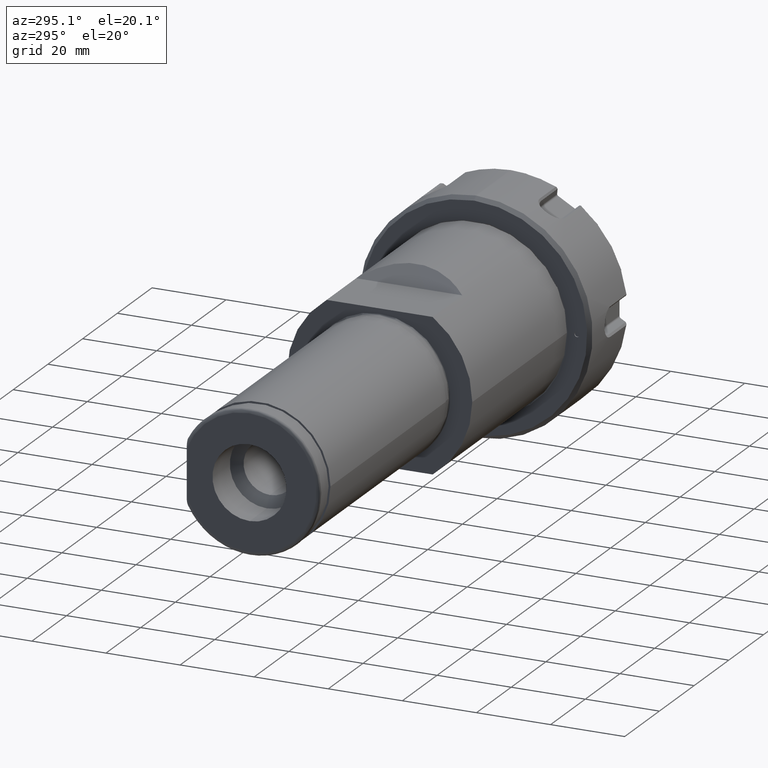
[diagram: clean part render]
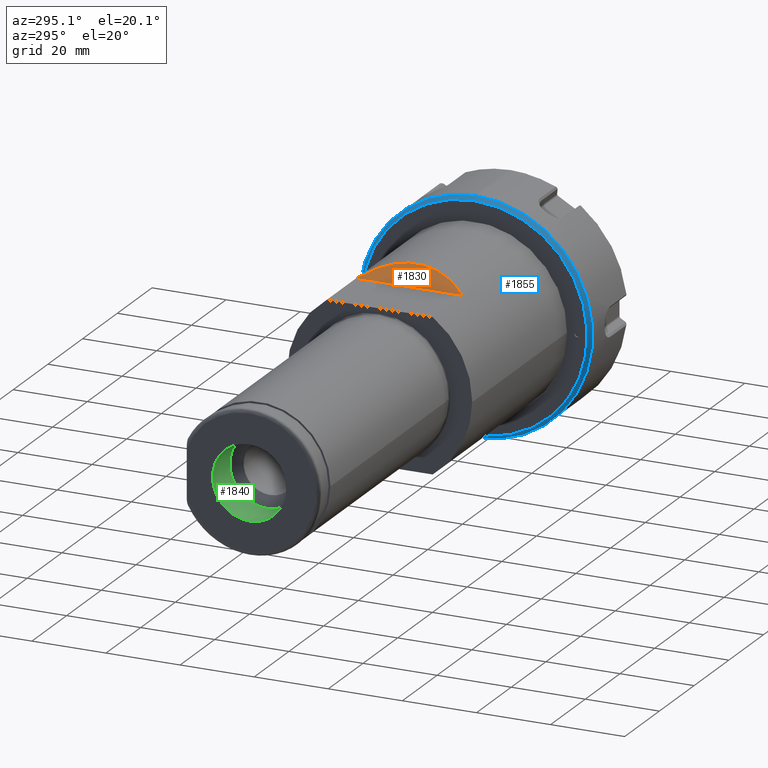
[diagram: same view with three faces highlighted in distinct colors, each labeled with its STEP entity id]
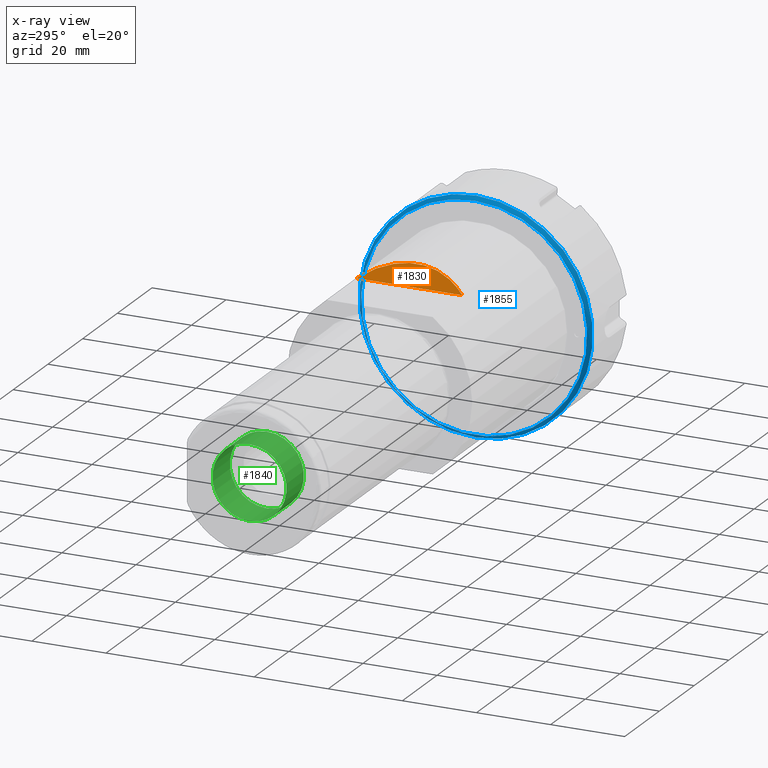
[diagram: x-ray of the same camera — body ghosted, the three highlighted faces saturated]
A machine part, auxiliary view with three faces highlighted in distinct colors.
The next image is the same camera in x-ray (body ghosted, the three faces saturated) — at least one of them is partly hidden behind the body in this view.
Their STEP definitions:

[orange] entity #1830 — the highlighted planar face has unit normal (0.7071, 0, -0.7071).
#340=FACE_OUTER_BOUND('',#452,.T.);
#452=EDGE_LOOP('',(#1251,#1252));
#574=LINE('',#2746,#688);
#688=VECTOR('',#2238,10.);
#798=ELLIPSE('',#2022,35.3553390593274,25.);
#808=VERTEX_POINT('',#2743);
#809=VERTEX_POINT('',#2744);
#979=EDGE_CURVE('',#808,#809,#798,.T.);
#980=EDGE_CURVE('',#809,#808,#574,.T.);
#1251=ORIENTED_EDGE('',*,*,#979,.F.);
#1252=ORIENTED_EDGE('',*,*,#980,.F.);
#1782=PLANE('',#2021);
#1830=ADVANCED_FACE('',(#340),#1782,.F.);
#2021=AXIS2_PLACEMENT_3D('',#2742,#2234,#2235);
#2022=AXIS2_PLACEMENT_3D('',#2745,#2236,#2237);
#2234=DIRECTION('center_axis',(0.707106781186548,0.,-0.707106781186548));
#2235=DIRECTION('ref_axis',(0.707106781186548,0.,0.707106781186548));
#2236=DIRECTION('center_axis',(0.707106781186548,0.,-0.707106781186548));
#2237=DIRECTION('ref_axis',(0.707106781186547,0.,0.707106781186547));
#2238=DIRECTION('',(0.,1.,0.));
#2742=CARTESIAN_POINT('Origin',(-48.,0.,20.5));
#2743=CARTESIAN_POINT('',(-48.,14.3090880212542,20.5));
#2744=CARTESIAN_POINT('',(-48.,-14.3090880212542,20.5));
#2745=CARTESIAN_POINT('Origin',(-68.5,0.,0.));
#2746=CARTESIAN_POINT('',(-48.,0.,20.5));

[blue] entity #1855 — the highlighted conical surface has half-angle 45 deg.
#136=CONICAL_SURFACE('',#2075,30.9999999999,0.785398163397448);
#279=CIRCLE('',#2072,30.5);
#282=CIRCLE('',#2076,31.5);
#365=FACE_OUTER_BOUND('',#482,.T.);
#482=EDGE_LOOP('',(#1368,#1369,#1370,#1371));
#600=LINE('',#2884,#714);
#714=VECTOR('',#2372,30.9999999999);
#840=VERTEX_POINT('',#2875);
#843=VERTEX_POINT('',#2882);
#1032=EDGE_CURVE('',#840,#840,#279,.T.);
#1035=EDGE_CURVE('',#843,#843,#282,.T.);
#1036=EDGE_CURVE('',#843,#840,#600,.T.);
#1368=ORIENTED_EDGE('',*,*,#1035,.T.);
#1369=ORIENTED_EDGE('',*,*,#1036,.T.);
#1370=ORIENTED_EDGE('',*,*,#1032,.F.);
#1371=ORIENTED_EDGE('',*,*,#1036,.F.);
#1855=ADVANCED_FACE('',(#365),#136,.T.);
#2072=AXIS2_PLACEMENT_3D('',#2876,#2362,#2363);
#2075=AXIS2_PLACEMENT_3D('',#2881,#2368,#2369);
#2076=AXIS2_PLACEMENT_3D('',#2883,#2370,#2371);
#2362=DIRECTION('center_axis',(-1.,0.,0.));
#2363=DIRECTION('ref_axis',(0.,0.,1.));
#2368=DIRECTION('center_axis',(1.,0.,0.));
#2369=DIRECTION('ref_axis',(0.,0.,-1.));
#2370=DIRECTION('center_axis',(-1.,0.,0.));
#2371=DIRECTION('ref_axis',(0.,0.,1.));
#2372=DIRECTION('',(-0.707106781186548,8.65956056235493E-17,-0.707106781186548));
#2875=CARTESIAN_POINT('',(-12.75,-3.73517273739943E-15,30.5));
#2876=CARTESIAN_POINT('Origin',(-12.75,0.,0.));
#2881=CARTESIAN_POINT('Origin',(-12.2500000001,0.,0.));
#2882=CARTESIAN_POINT('',(-11.75,-3.85763741731416E-15,31.5));
#2883=CARTESIAN_POINT('Origin',(-11.75,0.,0.));
#2884=CARTESIAN_POINT('',(-12.2500000001,-3.79640507734455E-15,30.9999999999));

[green] entity #1840 — the highlighted cylindrical surface (bore or boss wall) has radius 10 mm, axis along (-1, 0, 0).
#219=CYLINDRICAL_SURFACE('',#2043,10.);
#265=CIRCLE('',#2042,10.);
#266=CIRCLE('',#2044,10.);
#350=FACE_OUTER_BOUND('',#462,.T.);
#462=EDGE_LOOP('',(#1311,#1312,#1313,#1314));
#595=LINE('',#2837,#709);
#709=VECTOR('',#2303,10.);
#832=VERTEX_POINT('',#2831);
#833=VERTEX_POINT('',#2835);
#1012=EDGE_CURVE('',#832,#832,#265,.T.);
#1014=EDGE_CURVE('',#833,#833,#266,.T.);
#1015=EDGE_CURVE('',#833,#832,#595,.T.);
#1311=ORIENTED_EDGE('',*,*,#1014,.F.);
#1312=ORIENTED_EDGE('',*,*,#1015,.T.);
#1313=ORIENTED_EDGE('',*,*,#1012,.F.);
#1314=ORIENTED_EDGE('',*,*,#1015,.F.);
#1840=ADVANCED_FACE('',(#350),#219,.F.);
#2042=AXIS2_PLACEMENT_3D('',#2832,#2296,#2297);
#2043=AXIS2_PLACEMENT_3D('',#2834,#2299,#2300);
#2044=AXIS2_PLACEMENT_3D('',#2836,#2301,#2302);
#2296=DIRECTION('center_axis',(-1.,0.,0.));
#2297=DIRECTION('ref_axis',(0.,0.,1.));
#2299=DIRECTION('center_axis',(-1.,0.,0.));
#2300=DIRECTION('ref_axis',(0.,0.,1.));
#2301=DIRECTION('center_axis',(1.,0.,0.));
#2302=DIRECTION('ref_axis',(0.,0.,1.));
#2303=DIRECTION('',(1.,0.,0.));
#2831=CARTESIAN_POINT('',(-130.,-1.22464679914735E-15,-10.));
#2832=CARTESIAN_POINT('Origin',(-130.,0.,0.));
#2834=CARTESIAN_POINT('Origin',(-135.,0.,0.));
#2835=CARTESIAN_POINT('',(-140.,-1.22464679914735E-15,-10.));
#2836=CARTESIAN_POINT('Origin',(-140.,0.,0.));
#2837=CARTESIAN_POINT('',(-135.,-1.22464679914735E-15,-10.));